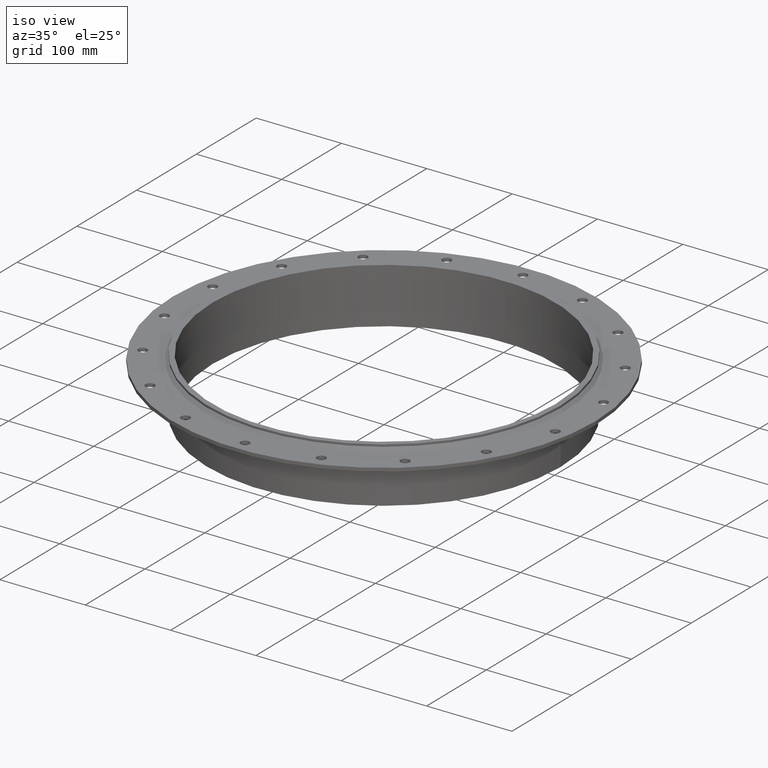
[diagram: clean part render]
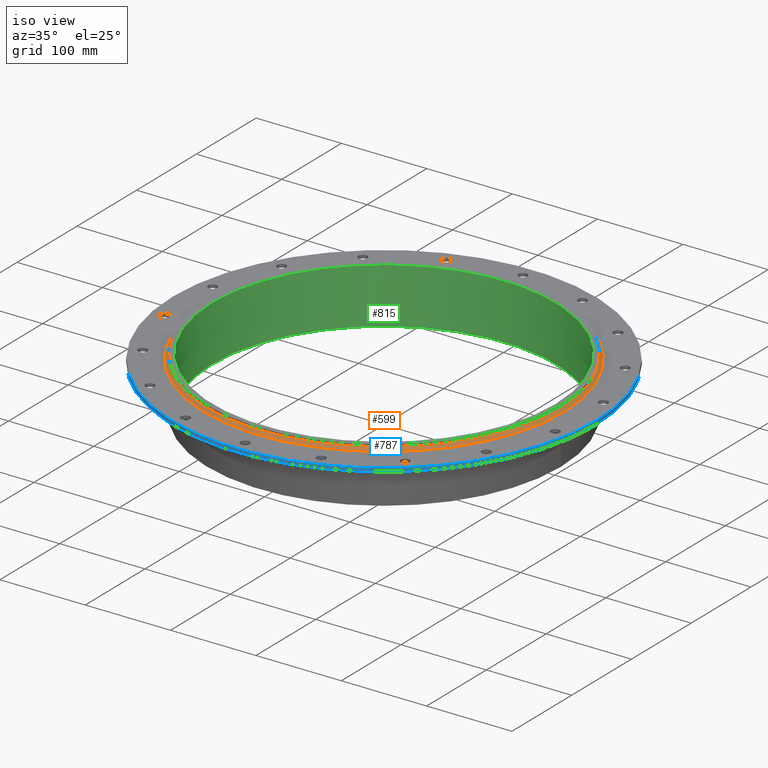
[diagram: same view with three faces highlighted in distinct colors, each labeled with its STEP entity id]
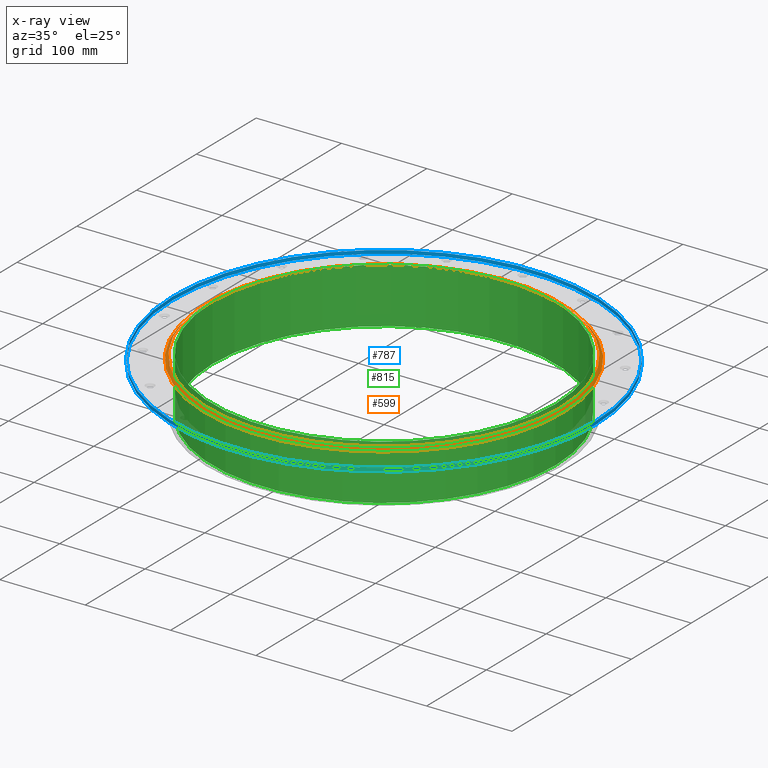
[diagram: x-ray of the same camera — body ghosted, the three highlighted faces saturated]
A machine part, iso view with three faces highlighted in distinct colors.
The next image is the same camera in x-ray (body ghosted, the three faces saturated) — at least one of them is partly hidden behind the body in this view.
Their STEP definitions:

[orange] entity #599 — the highlighted conical surface has half-angle 45 deg.
#572=CARTESIAN_POINT('',(0.0,0.0,-4.25));
#573=DIRECTION('',(0.0,0.0,-1.0));
#574=DIRECTION('',(-1.0,0.0,0.0));
#575=AXIS2_PLACEMENT_3D('',#572,#573,#574);
#576=CONICAL_SURFACE('',#575,208.75000000000011,45.000000000000099);
#577=CARTESIAN_POINT('',(210.50000000000011,2.577882E-014,-6.000000000000002));
#578=VERTEX_POINT('',#577);
#579=CARTESIAN_POINT('',(0.0,0.0,-6.000000000000002));
#580=DIRECTION('',(0.0,0.0,1.0));
#581=DIRECTION('',(-1.0,0.0,0.0));
#582=AXIS2_PLACEMENT_3D('',#579,#580,#581);
#583=CIRCLE('',#582,210.50000000000011);
#584=EDGE_CURVE('',#578,#578,#583,.T.);
#585=ORIENTED_EDGE('',*,*,#584,.T.);
#586=EDGE_LOOP('',(#585));
#587=FACE_OUTER_BOUND('',#586,.T.);
#588=CARTESIAN_POINT('',(207.00000000000011,-2.535019E-014,-2.5));
#589=VERTEX_POINT('',#588);
#590=CARTESIAN_POINT('',(0.0,0.0,-2.5));
#591=DIRECTION('',(0.0,0.0,-1.0));
#592=DIRECTION('',(-1.0,0.0,0.0));
#593=AXIS2_PLACEMENT_3D('',#590,#591,#592);
#594=CIRCLE('',#593,207.00000000000011);
#595=EDGE_CURVE('',#589,#589,#594,.T.);
#596=ORIENTED_EDGE('',*,*,#595,.T.);
#597=EDGE_LOOP('',(#596));
#598=FACE_BOUND('',#597,.T.);
#599=ADVANCED_FACE('',(#587,#598),#576,.T.);

[blue] entity #787 — the highlighted cylindrical surface (bore or boss wall) has radius 247.5 mm, axis along (0, 0, 1).
#605=CARTESIAN_POINT('',(247.5,3.031001E-014,-6.000000000000002));
#606=VERTEX_POINT('',#605);
#607=CARTESIAN_POINT('',(0.0,0.0,-6.000000000000002));
#608=DIRECTION('',(0.0,0.0,1.0));
#609=DIRECTION('',(-1.0,0.0,0.0));
#610=AXIS2_PLACEMENT_3D('',#607,#608,#609);
#611=CIRCLE('',#610,247.5);
#612=EDGE_CURVE('',#606,#606,#611,.T.);
#699=CARTESIAN_POINT('',(247.5,3.031001E-014,-10.0));
#700=VERTEX_POINT('',#699);
#701=CARTESIAN_POINT('',(0.0,0.0,-10.0));
#702=DIRECTION('',(0.0,0.0,-1.0));
#703=DIRECTION('',(-1.0,0.0,0.0));
#704=AXIS2_PLACEMENT_3D('',#701,#702,#703);
#705=CIRCLE('',#704,247.5);
#706=EDGE_CURVE('',#700,#700,#705,.T.);
#776=CARTESIAN_POINT('',(0.0,0.0,-8.0));
#777=DIRECTION('',(0.0,0.0,1.0));
#778=DIRECTION('',(-1.0,0.0,0.0));
#779=AXIS2_PLACEMENT_3D('',#776,#777,#778);
#780=CYLINDRICAL_SURFACE('',#779,247.5);
#781=ORIENTED_EDGE('',*,*,#706,.F.);
#782=EDGE_LOOP('',(#781));
#783=FACE_OUTER_BOUND('',#782,.T.);
#784=ORIENTED_EDGE('',*,*,#612,.F.);
#785=EDGE_LOOP('',(#784));
#786=FACE_BOUND('',#785,.T.);
#787=ADVANCED_FACE('',(#783,#786),#780,.T.);

[green] entity #815 — the highlighted cylindrical surface (bore or boss wall) has radius 201 mm, axis along (0, 0, 1).
#788=CARTESIAN_POINT('',(0.0,0.0,-589.08148842074479));
#789=DIRECTION('',(0.0,0.0,1.0));
#790=DIRECTION('',(1.0,0.0,0.0));
#791=AXIS2_PLACEMENT_3D('',#788,#789,#790);
#792=CYLINDRICAL_SURFACE('',#791,201.0);
#793=CARTESIAN_POINT('',(-201.0,-2.461540E-014,-65.0));
#794=VERTEX_POINT('',#793);
#795=CARTESIAN_POINT('',(0.0,0.0,-65.0));
#796=DIRECTION('',(0.0,0.0,1.0));
#797=DIRECTION('',(1.0,0.0,0.0));
#798=AXIS2_PLACEMENT_3D('',#795,#796,#797);
#799=CIRCLE('',#798,201.0);
#800=EDGE_CURVE('',#794,#794,#799,.T.);
#801=ORIENTED_EDGE('',*,*,#800,.F.);
#802=EDGE_LOOP('',(#801));
#803=FACE_OUTER_BOUND('',#802,.T.);
#804=CARTESIAN_POINT('',(201.0,0.0,0.0));
#805=VERTEX_POINT('',#804);
#806=CARTESIAN_POINT('',(0.0,0.0,0.0));
#807=DIRECTION('',(0.0,0.0,-1.0));
#808=DIRECTION('',(1.0,0.0,0.0));
#809=AXIS2_PLACEMENT_3D('',#806,#807,#808);
#810=CIRCLE('',#809,201.0);
#811=EDGE_CURVE('',#805,#805,#810,.T.);
#812=ORIENTED_EDGE('',*,*,#811,.F.);
#813=EDGE_LOOP('',(#812));
#814=FACE_BOUND('',#813,.T.);
#815=ADVANCED_FACE('',(#803,#814),#792,.F.);